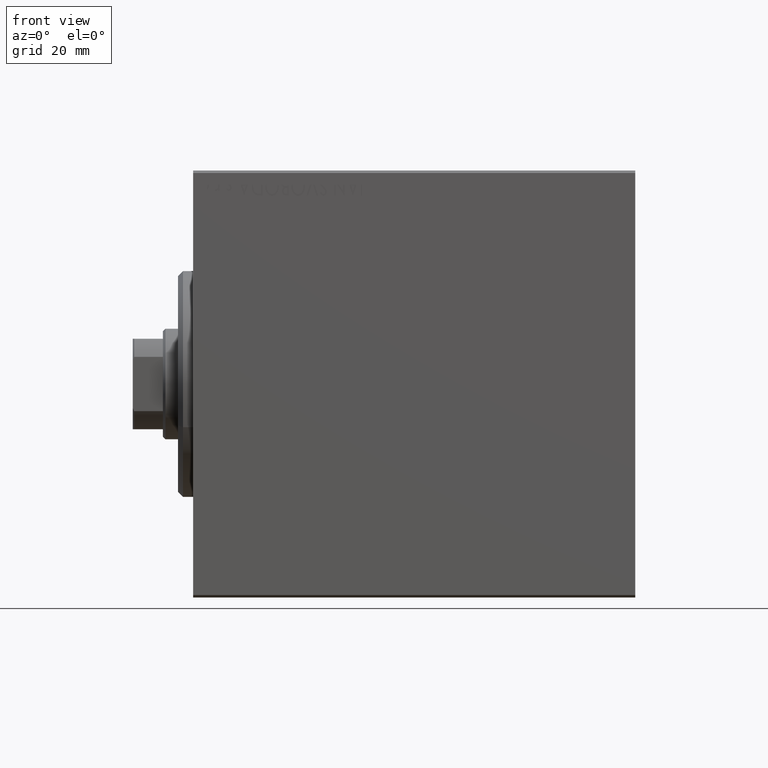
[diagram: clean part render]
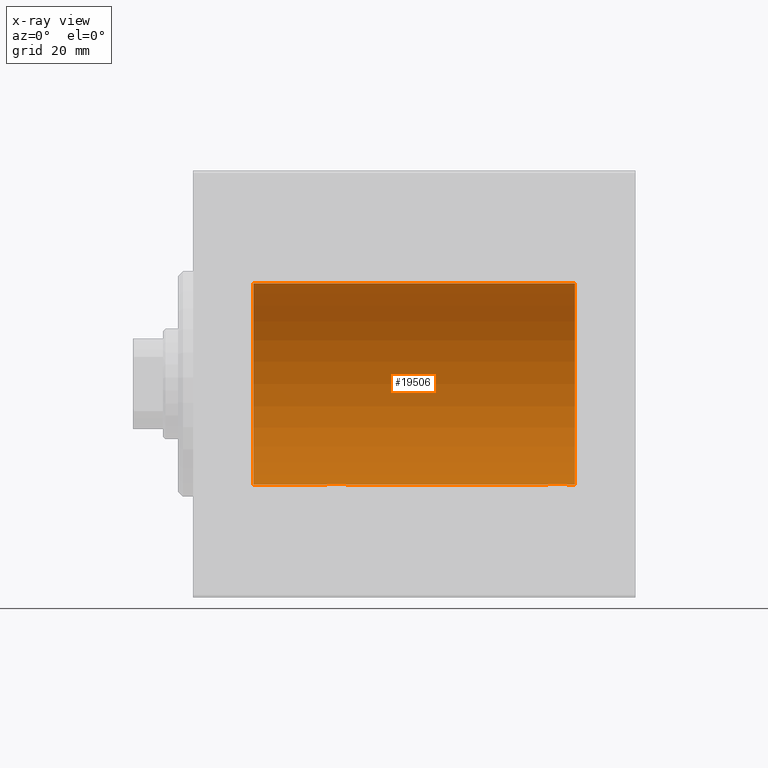
[diagram: x-ray — body ghosted, one internal face saturated and labeled with its STEP entity id]
A machine part, front view, then the same camera in x-ray: the body is ghosted and one INTERNAL B-rep face — a face not visible from any outside direction — is saturated and labeled: STEP entity #19506.
In plain terms, the highlighted cylindrical surface (partial cylindrical patch) has radius 20 mm, axis along (-1, -0, -0).
Its self-contained STEP definition (entity closure, byte-faithful):
#38 = CARTESIAN_POINT ( 'NONE',  ( 73.82060165083835557, 1.507796451871721066, -19.94330239452388298 ) ) ;
#257 = CARTESIAN_POINT ( 'NONE',  ( 70.76423634872104174, 1.002099838626304695, -19.97517568592526871 ) ) ;
#586 = DIRECTION ( 'NONE',  ( -1.000000000000000000, -0.000000000000000000, -0.000000000000000000 ) ) ;
#1332 = VECTOR ( 'NONE', #26845, 1000.000000000000000 ) ;
#1417 = DIRECTION ( 'NONE',  ( -1.000000000000000000, -0.000000000000000000, -0.000000000000000000 ) ) ;
#1640 = LINE ( 'NONE', #28571, #20860 ) ;
#2460 = CARTESIAN_POINT ( 'NONE',  ( 30.29753901127163118, 0.8865903856744307143, -19.98070694681039683 ) ) ;
#2708 = CARTESIAN_POINT ( 'NONE',  ( 70.90940266542450843, 1.219458756546260236, -19.96308513509967497 ) ) ;
#2785 = VERTEX_POINT ( 'NONE', #19559 ) ;
#3151 = CARTESIAN_POINT ( 'NONE',  ( 70.50000000000000000, -5.133775462521235346E-15, -20.00000000000000000 ) ) ;
#3369 = CARTESIAN_POINT ( 'NONE',  ( 72.76241417820001800, 1.987020435121066742, -19.90106552791689154 ) ) ;
#3922 = ORIENTED_EDGE ( 'NONE', *, *, #19625, .F. ) ;
#4787 = CARTESIAN_POINT ( 'NONE',  ( 76.00000000000000000, 0.000000000000000000, 20.00000000000000000 ) ) ;
#5348 = CARTESIAN_POINT ( 'NONE',  ( 26.99384229619287012, 1.322305185229304625, -19.95645382900617548 ) ) ;
#5761 = VERTEX_POINT ( 'NONE', #18324 ) ;
#6043 = CARTESIAN_POINT ( 'NONE',  ( 74.50000000000000000, 0.1305706983324447512, -20.00000000000000000 ) ) ;
#7365 = EDGE_CURVE ( 'NONE', #21610, #14628, #12594, .T. ) ;
#8448 = CARTESIAN_POINT ( 'NONE',  ( 29.50297226784953608, 1.735228749583830332, -19.92471474456648650 ) ) ;
#8888 = CARTESIAN_POINT ( 'NONE',  ( 29.14371130639851160, 1.898109641280501636, -19.90978941500366872 ) ) ;
#9110 = CARTESIAN_POINT ( 'NONE',  ( 30.43573148867292488, 0.5196544277756701691, -19.99365919015135518 ) ) ;
#9339 = CARTESIAN_POINT ( 'NONE',  ( 27.97486091545001230, 1.947330458682949850, -19.90522393307485061 ) ) ;
#9373 = CARTESIAN_POINT ( 'NONE',  ( 71.27049887769368297, 1.598854313793175885, -19.93684595445884966 ) ) ;
#11033 = LINE ( 'NONE', #4787, #42838 ) ;
#11179 = EDGE_CURVE ( 'NONE', #22121, #14628, #17985, .T. ) ;
#11887 = VERTEX_POINT ( 'NONE', #17925 ) ;
#12013 = CARTESIAN_POINT ( 'NONE',  ( 26.70278656943304796, 0.8872481584516701547, -19.98067755938510004 ) ) ;
#12238 = CARTESIAN_POINT ( 'NONE',  ( 26.90940266542447645, 1.219458756546263789, -19.96308513509966787 ) ) ;
#12594 = LINE ( 'NONE', #39967, #1332 ) ;
#12684 = CARTESIAN_POINT ( 'NONE',  ( 30.48691292011447374, 0.2631998640366455255, -19.99867931558985745 ) ) ;
#13603 = CARTESIAN_POINT ( 'NONE',  ( 73.71960275349746894, 1.590453176650917566, -19.93679350243184345 ) ) ;
#13769 = VERTEX_POINT ( 'NONE', #22830 ) ;
#13820 = CARTESIAN_POINT ( 'NONE',  ( 70.99384229619288078, 1.322305185229300184, -19.95645382900616482 ) ) ;
#14628 = VERTEX_POINT ( 'NONE', #29123 ) ;
#14895 = CARTESIAN_POINT ( 'NONE',  ( 11.99999999999999645, 0.000000000000000000, 0.000000000000000000 ) ) ;
#15138 = AXIS2_PLACEMENT_3D ( 'NONE', #33533, #586, #40203 ) ;
#15141 = CARTESIAN_POINT ( 'NONE',  ( 26.51298505384673732, 0.2622407139811037680, -19.99868965376114716 ) ) ;
#15363 = CARTESIAN_POINT ( 'NONE',  ( 30.50000000000000000, 2.449293582768389958E-15, -20.00000000000000000 ) ) ;
#15393 = EDGE_CURVE ( 'NONE', #5761, #2785, #39933, .T. ) ;
#15585 = CARTESIAN_POINT ( 'NONE',  ( 26.60234886833925927, 0.6450624715427553113, -19.98996196681220638 ) ) ;
#16287 = CARTESIAN_POINT ( 'NONE',  ( 72.62981181290707866, 2.000047251570880036, -19.89974399317116038 ) ) ;
#16590 = CIRCLE ( 'NONE', #30780, 20.00000000000000000 ) ;
#16936 = CARTESIAN_POINT ( 'NONE',  ( 70.60234886833930545, 0.6450624715427508704, -19.98996196681220994 ) ) ;
#17154 = CARTESIAN_POINT ( 'NONE',  ( 73.50297226784952898, 1.735228749583831442, -19.92471474456648650 ) ) ;
#17248 = LINE ( 'NONE', #38577, #18793 ) ;
#17585 = ORIENTED_EDGE ( 'NONE', *, *, #32036, .T. ) ;
#17637 = CARTESIAN_POINT ( 'NONE',  ( 26.50000000000000355, -6.257798774011376898E-15, -20.00000000000000000 ) ) ;
#17925 = CARTESIAN_POINT ( 'NONE',  ( 30.50000000000000000, 2.449293582768389958E-15, -20.00000000000000000 ) ) ;
#17985 = B_SPLINE_CURVE_WITH_KNOTS ( 'NONE', 3,
 ( #3151, #33851, #40737, #40085, #16936, #30509, #257, #2708, #13820, #9373, #20067, #30077, #20491, #16287, #3369, #26757, #29856, #34065, #17154, #13603, #38, #23401, #43421, #40302, #36965, #27188, #33198, #26527, #6043, #30297 ),
 .UNSPECIFIED., .F., .F.,
 ( 4, 2, 2, 2, 2, 2, 2, 2, 2, 2, 2, 2, 2, 2, 4 ),
 ( 2.321975990544223827E-18, 0.0003910512220831165522, 0.0007821024441662306108, 0.001173153666249344886, 0.001564204888332458836, 0.002346307332498715360, 0.003128409776664972317, 0.003519460998748080629, 0.003910512220831188074, 0.004301563442914295952, 0.004692614664997402096, 0.005083665887080509975, 0.005474717109163616986, 0.005865768331246724865, 0.006256819553329831876 ),
 .UNSPECIFIED. ) ;
#18324 = CARTESIAN_POINT ( 'NONE',  ( 11.99999999999999645, 0.000000000000000000, 20.00000000000000000 ) ) ;
#18793 = VECTOR ( 'NONE', #28578, 1000.000000000000000 ) ;
#18924 = CARTESIAN_POINT ( 'NONE',  ( 28.62981181290706090, 2.000047251570884477, -19.89974399317115683 ) ) ;
#19379 = CARTESIAN_POINT ( 'NONE',  ( 27.49354240926169268, 1.747830109444738156, -19.92373272380676852 ) ) ;
#19506 = ADVANCED_FACE ( 'NONE', ( #34396 ), #31060, .F. ) ;
#19559 = CARTESIAN_POINT ( 'NONE',  ( 11.99999999999999645, 2.449293598294706513E-15, -20.00000000000000000 ) ) ;
#19602 = CARTESIAN_POINT ( 'NONE',  ( 28.23819846102561826, 1.999905101582720279, -19.89975827978156886 ) ) ;
#19625 = EDGE_CURVE ( 'NONE', #13769, #21610, #16590, .T. ) ;
#20067 = CARTESIAN_POINT ( 'NONE',  ( 71.49354240926170689, 1.747830109444730384, -19.92373272380676497 ) ) ;
#20491 = CARTESIAN_POINT ( 'NONE',  ( 72.23819846102561826, 1.999905101582715394, -19.89975827978156531 ) ) ;
#20860 = VECTOR ( 'NONE', #1417, 1000.000000000000000 ) ;
#21610 = VERTEX_POINT ( 'NONE', #29152 ) ;
#22121 = VERTEX_POINT ( 'NONE', #30314 ) ;
#22391 = B_SPLINE_CURVE_WITH_KNOTS ( 'NONE', 3,
 ( #22699, #32710, #15141, #36272, #15585, #12013, #29606, #12238, #5348, #29159, #19379, #9339, #19602, #18924, #33166, #42278, #8888, #25606, #8448, #32488, #29386, #32941, #25828, #39605, #2460, #35601, #9110, #12684, #39381, #15363 ),
 .UNSPECIFIED., .F., .F.,
 ( 4, 2, 2, 2, 2, 2, 2, 2, 2, 2, 2, 2, 2, 2, 4 ),
 ( 5.963022395843225278E-20, 0.0003910512220831150344, 0.0007821024441662300687, 0.001173153666249344886, 0.001564204888332459921, 0.002346307332498689339, 0.003128409776664918974, 0.003519460998748033791, 0.003910512220831149043, 0.004301563442914263860, 0.004692614664997378678, 0.005083665887080494362, 0.005474717109163609180, 0.005865768331246723997, 0.006256819553329837948 ),
 .UNSPECIFIED. ) ;
#22699 = CARTESIAN_POINT ( 'NONE',  ( 26.50000000000000355, -6.257798774011376898E-15, -20.00000000000000000 ) ) ;
#22830 = CARTESIAN_POINT ( 'NONE',  ( 76.00000000000000000, 0.000000000000000000, 20.00000000000000000 ) ) ;
#23024 = ORIENTED_EDGE ( 'NONE', *, *, #15393, .T. ) ;
#23401 = CARTESIAN_POINT ( 'NONE',  ( 74.00738641543991037, 1.321069663197662614, -19.95654117037011233 ) ) ;
#24608 = DIRECTION ( 'NONE',  ( 0.000000000000000000, 0.000000000000000000, 1.000000000000000000 ) ) ;
#25277 = DIRECTION ( 'NONE',  ( -1.000000000000000000, -0.000000000000000000, -0.000000000000000000 ) ) ;
#25606 = CARTESIAN_POINT ( 'NONE',  ( 29.38596189455837049, 1.797847595792762432, -19.91909332229799290 ) ) ;
#25828 = CARTESIAN_POINT ( 'NONE',  ( 30.09007067689674741, 1.220099331833897294, -19.96304379627741099 ) ) ;
#26527 = CARTESIAN_POINT ( 'NONE',  ( 74.48691292011450571, 0.2631998640366452480, -19.99867931558986101 ) ) ;
#26757 = CARTESIAN_POINT ( 'NONE',  ( 73.01899474186113537, 1.935912154109691752, -19.90610216711450775 ) ) ;
#26845 = DIRECTION ( 'NONE',  ( -1.000000000000000000, -0.000000000000000000, -0.000000000000000000 ) ) ;
#27188 = CARTESIAN_POINT ( 'NONE',  ( 74.39789687358864967, 0.6443418861413126031, -19.98998539619404724 ) ) ;
#28571 = CARTESIAN_POINT ( 'NONE',  ( 76.00000000000000000, 2.449293598294706513E-15, -20.00000000000000000 ) ) ;
#28578 = DIRECTION ( 'NONE',  ( -1.000000000000000000, -0.000000000000000000, -0.000000000000000000 ) ) ;
#29123 = CARTESIAN_POINT ( 'NONE',  ( 74.50000000000001421, 2.449293582762867932E-15, -20.00000000000000000 ) ) ;
#29152 = CARTESIAN_POINT ( 'NONE',  ( 76.00000000000000000, 2.449293598294706513E-15, -20.00000000000000000 ) ) ;
#29159 = CARTESIAN_POINT ( 'NONE',  ( 27.27049887769365810, 1.598854313793178994, -19.93684595445884256 ) ) ;
#29386 = CARTESIAN_POINT ( 'NONE',  ( 29.82060165083834846, 1.507796451871724175, -19.94330239452387943 ) ) ;
#29606 = CARTESIAN_POINT ( 'NONE',  ( 26.76423634872104884, 1.002099838626308248, -19.97517568592526160 ) ) ;
#29856 = CARTESIAN_POINT ( 'NONE',  ( 73.14371130639852936, 1.898109641280498527, -19.90978941500366517 ) ) ;
#30077 = CARTESIAN_POINT ( 'NONE',  ( 71.97486091545005138, 1.947330458682943188, -19.90522393307485771 ) ) ;
#30297 = CARTESIAN_POINT ( 'NONE',  ( 74.50000000000001421, 2.449293582762867932E-15, -20.00000000000000000 ) ) ;
#30314 = CARTESIAN_POINT ( 'NONE',  ( 70.50000000000000000, -5.133775462521235346E-15, -20.00000000000000000 ) ) ;
#30509 = CARTESIAN_POINT ( 'NONE',  ( 70.70278656943303019, 0.8872481584516642705, -19.98067755938510359 ) ) ;
#30780 = AXIS2_PLACEMENT_3D ( 'NONE', #38379, #41508, #24608 ) ;
#31060 = CYLINDRICAL_SURFACE ( 'NONE', #15138, 20.00000000000000000 ) ;
#32036 = EDGE_CURVE ( 'NONE', #13769, #5761, #11033, .T. ) ;
#32093 = ORIENTED_EDGE ( 'NONE', *, *, #36138, .F. ) ;
#32488 = CARTESIAN_POINT ( 'NONE',  ( 29.71960275349742986, 1.590453176650915346, -19.93679350243183634 ) ) ;
#32710 = CARTESIAN_POINT ( 'NONE',  ( 26.50000000000001066, 0.1322335637814670561, -19.99999999999999645 ) ) ;
#32941 = CARTESIAN_POINT ( 'NONE',  ( 30.00738641543989260, 1.321069663197666388, -19.95654117037011588 ) ) ;
#33166 = CARTESIAN_POINT ( 'NONE',  ( 28.76241417820002155, 1.987020435121070516, -19.90106552791689154 ) ) ;
#33197 = EDGE_CURVE ( 'NONE', #22121, #11887, #1640, .T. ) ;
#33198 = CARTESIAN_POINT ( 'NONE',  ( 74.43573148867291422, 0.5196544277756690589, -19.99365919015135518 ) ) ;
#33533 = CARTESIAN_POINT ( 'NONE',  ( 76.00000000000000000, 0.000000000000000000, 0.000000000000000000 ) ) ;
#33851 = CARTESIAN_POINT ( 'NONE',  ( 70.50000000000000000, 0.1322335637814657239, -20.00000000000000355 ) ) ;
#34065 = CARTESIAN_POINT ( 'NONE',  ( 73.38596189455839180, 1.797847595792761100, -19.91909332229798579 ) ) ;
#34396 = FACE_OUTER_BOUND ( 'NONE', #39344, .T. ) ;
#34553 = EDGE_CURVE ( 'NONE', #43048, #11887, #22391, .T. ) ;
#34929 = DIRECTION ( 'NONE',  ( -1.000000000000000000, 0.000000000000000000, 0.000000000000000000 ) ) ;
#35142 = ORIENTED_EDGE ( 'NONE', *, *, #7365, .F. ) ;
#35562 = ORIENTED_EDGE ( 'NONE', *, *, #34553, .T. ) ;
#35601 = CARTESIAN_POINT ( 'NONE',  ( 30.39789687358864967, 0.6443418861413116039, -19.98998539619404724 ) ) ;
#35659 = AXIS2_PLACEMENT_3D ( 'NONE', #14895, #34929, #38044 ) ;
#35713 = ORIENTED_EDGE ( 'NONE', *, *, #33197, .F. ) ;
#36138 = EDGE_CURVE ( 'NONE', #43048, #2785, #17248, .T. ) ;
#36272 = CARTESIAN_POINT ( 'NONE',  ( 26.56384771616671969, 0.5179893069484556856, -19.99370013622814568 ) ) ;
#36965 = CARTESIAN_POINT ( 'NONE',  ( 74.29753901127162408, 0.8865903856744312694, -19.98070694681039328 ) ) ;
#38044 = DIRECTION ( 'NONE',  ( 0.000000000000000000, 0.000000000000000000, 1.000000000000000000 ) ) ;
#38379 = CARTESIAN_POINT ( 'NONE',  ( 76.00000000000000000, 0.000000000000000000, 0.000000000000000000 ) ) ;
#38577 = CARTESIAN_POINT ( 'NONE',  ( 76.00000000000000000, 2.449293598294706513E-15, -20.00000000000000000 ) ) ;
#39344 = EDGE_LOOP ( 'NONE', ( #35142, #3922, #17585, #23024, #32093, #35562, #35713, #40018 ) ) ;
#39381 = CARTESIAN_POINT ( 'NONE',  ( 30.50000000000000000, 0.1305706983324451675, -19.99999999999999289 ) ) ;
#39605 = CARTESIAN_POINT ( 'NONE',  ( 30.23489454601983795, 1.003547732426805617, -19.97510079925437054 ) ) ;
#39933 = CIRCLE ( 'NONE', #35659, 20.00000000000000000 ) ;
#39967 = CARTESIAN_POINT ( 'NONE',  ( 76.00000000000000000, 2.449293598294706513E-15, -20.00000000000000000 ) ) ;
#40018 = ORIENTED_EDGE ( 'NONE', *, *, #11179, .T. ) ;
#40085 = CARTESIAN_POINT ( 'NONE',  ( 70.56384771616671969, 0.5179893069484544643, -19.99370013622813858 ) ) ;
#40203 = DIRECTION ( 'NONE',  ( 0.000000000000000000, 0.000000000000000000, 1.000000000000000000 ) ) ;
#40302 = CARTESIAN_POINT ( 'NONE',  ( 74.23489454601981663, 1.003547732426802730, -19.97510079925436699 ) ) ;
#40737 = CARTESIAN_POINT ( 'NONE',  ( 70.51298505384674797, 0.2622407139811032684, -19.99868965376115071 ) ) ;
#41508 = DIRECTION ( 'NONE',  ( -1.000000000000000000, 0.000000000000000000, 0.000000000000000000 ) ) ;
#42278 = CARTESIAN_POINT ( 'NONE',  ( 29.01899474186110695, 1.935912154109695082, -19.90610216711450420 ) ) ;
#42838 = VECTOR ( 'NONE', #25277, 1000.000000000000000 ) ;
#43048 = VERTEX_POINT ( 'NONE', #17637 ) ;
#43421 = CARTESIAN_POINT ( 'NONE',  ( 74.09007067689672965, 1.220099331833893741, -19.96304379627740744 ) ) ;